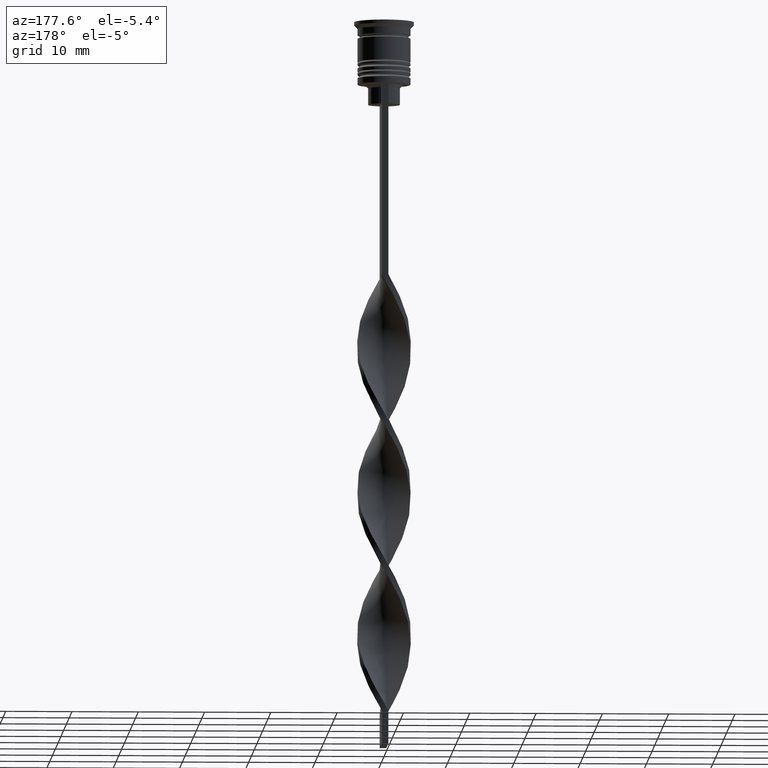
[diagram: clean part render]
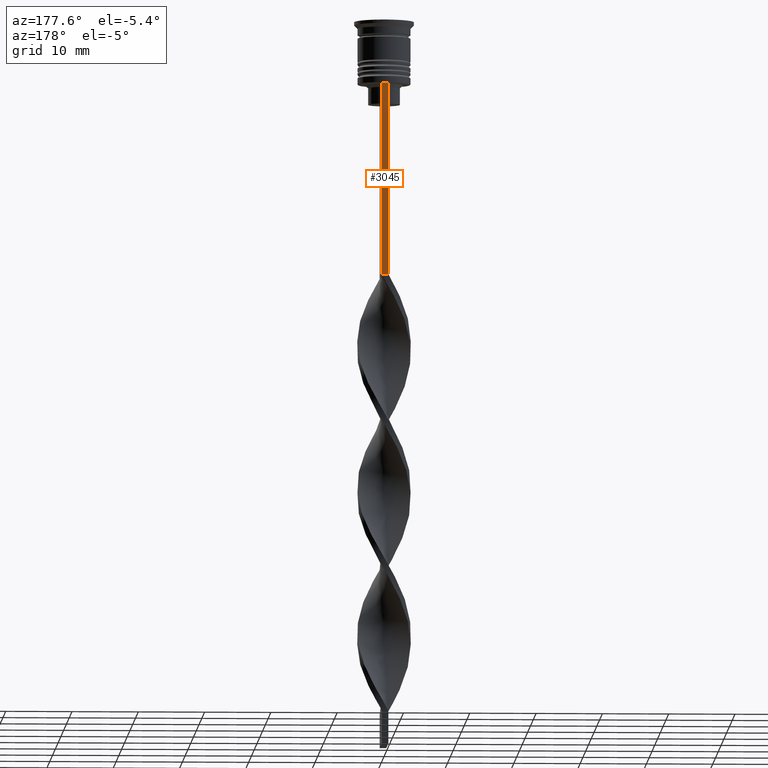
[diagram: same view with one face highlighted and labeled with its STEP entity id]
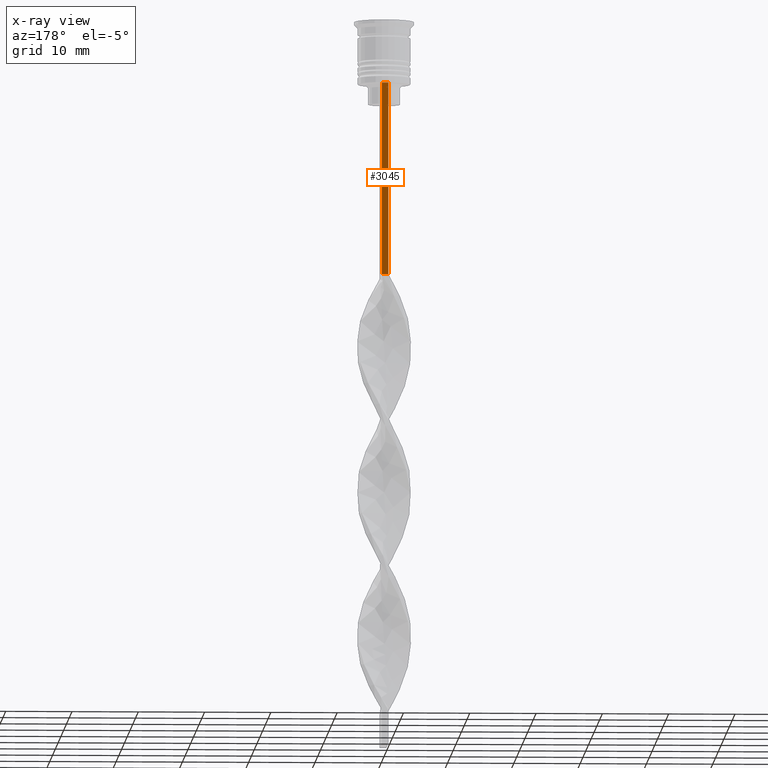
[diagram: x-ray of the same camera — body ghosted, the highlighted face saturated]
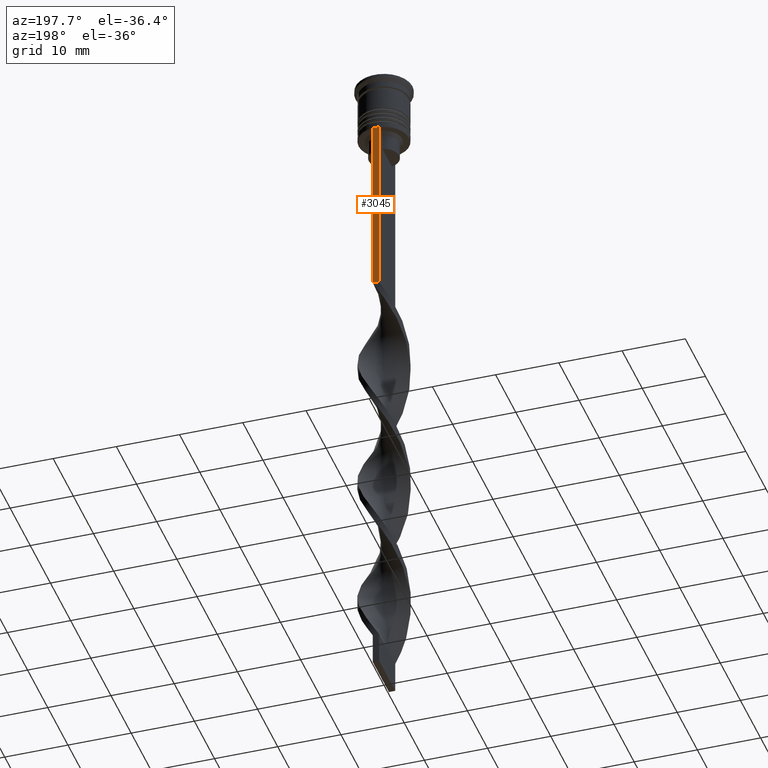
[diagram: same view with one face highlighted and labeled with its STEP entity id]
A machine part, auxiliary view. The second image highlights one B-rep face of the part: STEP entity #3045.
The next image is the same camera in x-ray: the body ghosted, the highlighted face saturated — about 0% of this face is hidden behind the body in this view.
A second angle (auxiliary view) of the same face is appended — the face is thin or edge-on in the first view.
In plain terms, the highlighted planar face has unit normal (0, -1, -0).
Its self-contained STEP definition (entity closure, byte-faithful):
#86 = VERTEX_POINT ( 'NONE', #242 ) ;
#121 = LINE ( 'NONE', #3133, #3380 ) ;
#218 = CARTESIAN_POINT ( 'NONE',  ( 0.5000000000000000000, 4.000000000000000000, -1.437742251701450202 ) ) ;
#242 = CARTESIAN_POINT ( 'NONE',  ( -0.5000000000000000000, 4.000000000000000000, -38.50000000000000000 ) ) ;
#264 = VECTOR ( 'NONE', #1041, 1000.000000000000000 ) ;
#350 = VERTEX_POINT ( 'NONE', #2275 ) ;
#475 = LINE ( 'NONE', #1948, #264 ) ;
#477 = EDGE_CURVE ( 'NONE', #3007, #2602, #1094, .T. ) ;
#523 = EDGE_CURVE ( 'NONE', #350, #3007, #651, .T. ) ;
#651 = LINE ( 'NONE', #1707, #1263 ) ;
#713 = DIRECTION ( 'NONE',  ( 0.000000000000000000, -1.000000000000000000, -0.000000000000000000 ) ) ;
#731 = VECTOR ( 'NONE', #3588, 1000.000000000000000 ) ;
#810 = EDGE_CURVE ( 'NONE', #350, #86, #121, .T. ) ;
#963 = FACE_OUTER_BOUND ( 'NONE', #2057, .T. ) ;
#1029 = PLANE ( 'NONE',  #1384 ) ;
#1041 = DIRECTION ( 'NONE',  ( -1.000000000000000000, 0.000000000000000000, 0.000000000000000000 ) ) ;
#1094 = LINE ( 'NONE', #218, #731 ) ;
#1263 = VECTOR ( 'NONE', #2636, 1000.000000000000000 ) ;
#1346 = CARTESIAN_POINT ( 'NONE',  ( 0.5000000000000000000, 4.000000000000000000, -38.50000000000000000 ) ) ;
#1384 = AXIS2_PLACEMENT_3D ( 'NONE', #3010, #713, #2968 ) ;
#1707 = CARTESIAN_POINT ( 'NONE',  ( 0.5000000000000000000, 4.000000000000000000, -9.500000000000000000 ) ) ;
#1948 = CARTESIAN_POINT ( 'NONE',  ( 0.5000000000000000000, 4.000000000000000000, -38.50000000000000000 ) ) ;
#1961 = ORIENTED_EDGE ( 'NONE', *, *, #810, .F. ) ;
#2047 = ORIENTED_EDGE ( 'NONE', *, *, #477, .T. ) ;
#2057 = EDGE_LOOP ( 'NONE', ( #1961, #3370, #2047, #2204 ) ) ;
#2110 = EDGE_CURVE ( 'NONE', #2602, #86, #475, .T. ) ;
#2204 = ORIENTED_EDGE ( 'NONE', *, *, #2110, .T. ) ;
#2275 = CARTESIAN_POINT ( 'NONE',  ( -0.5000000000000000000, 4.000000000000000000, -9.500000000000000000 ) ) ;
#2423 = CARTESIAN_POINT ( 'NONE',  ( 0.5000000000000000000, 4.000000000000000000, -9.500000000000000000 ) ) ;
#2602 = VERTEX_POINT ( 'NONE', #1346 ) ;
#2636 = DIRECTION ( 'NONE',  ( 1.000000000000000000, 0.000000000000000000, 0.000000000000000000 ) ) ;
#2968 = DIRECTION ( 'NONE',  ( 0.000000000000000000, 0.000000000000000000, -1.000000000000000000 ) ) ;
#3007 = VERTEX_POINT ( 'NONE', #2423 ) ;
#3010 = CARTESIAN_POINT ( 'NONE',  ( 0.5000000000000000000, 4.000000000000000000, -1.437742251701450202 ) ) ;
#3045 = ADVANCED_FACE ( 'NONE', ( #963 ), #1029, .F. ) ;
#3133 = CARTESIAN_POINT ( 'NONE',  ( -0.5000000000000000000, 4.000000000000000000, -1.437742251701450202 ) ) ;
#3370 = ORIENTED_EDGE ( 'NONE', *, *, #523, .T. ) ;
#3380 = VECTOR ( 'NONE', #3440, 1000.000000000000000 ) ;
#3440 = DIRECTION ( 'NONE',  ( 0.000000000000000000, 0.000000000000000000, -1.000000000000000000 ) ) ;
#3588 = DIRECTION ( 'NONE',  ( 0.000000000000000000, 0.000000000000000000, -1.000000000000000000 ) ) ;